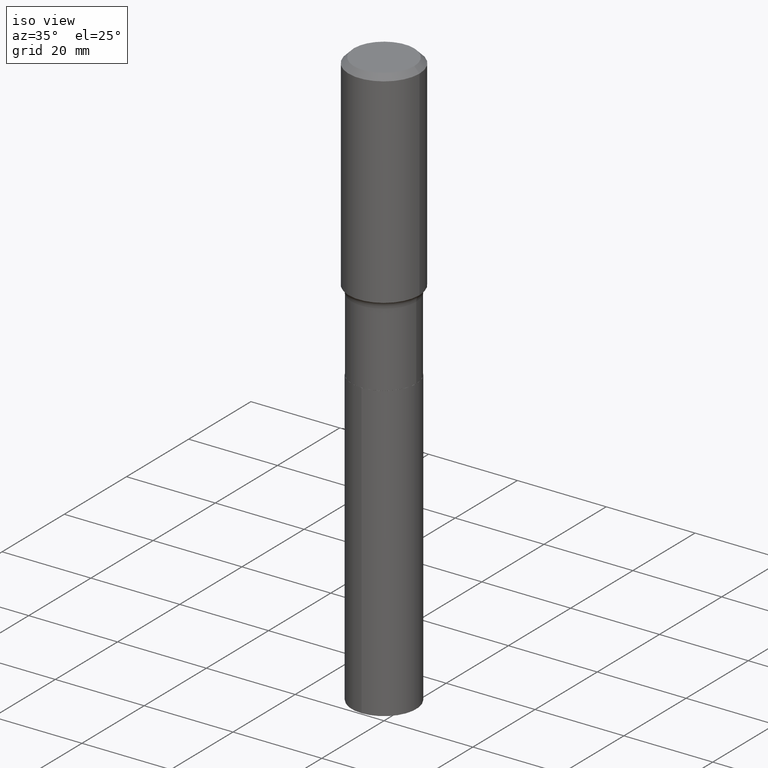
[diagram: clean part render]
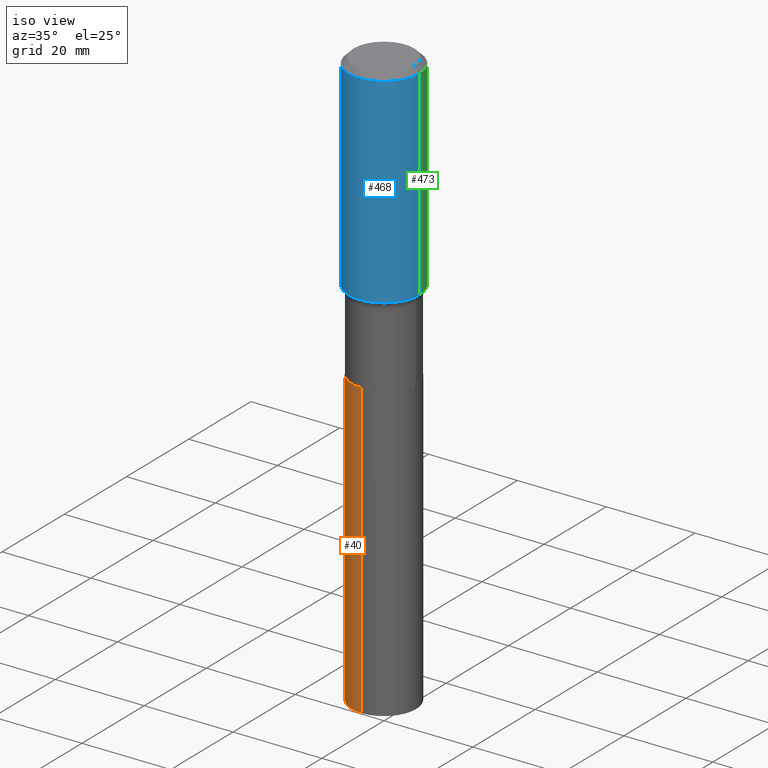
[diagram: same view with three faces highlighted in distinct colors, each labeled with its STEP entity id]
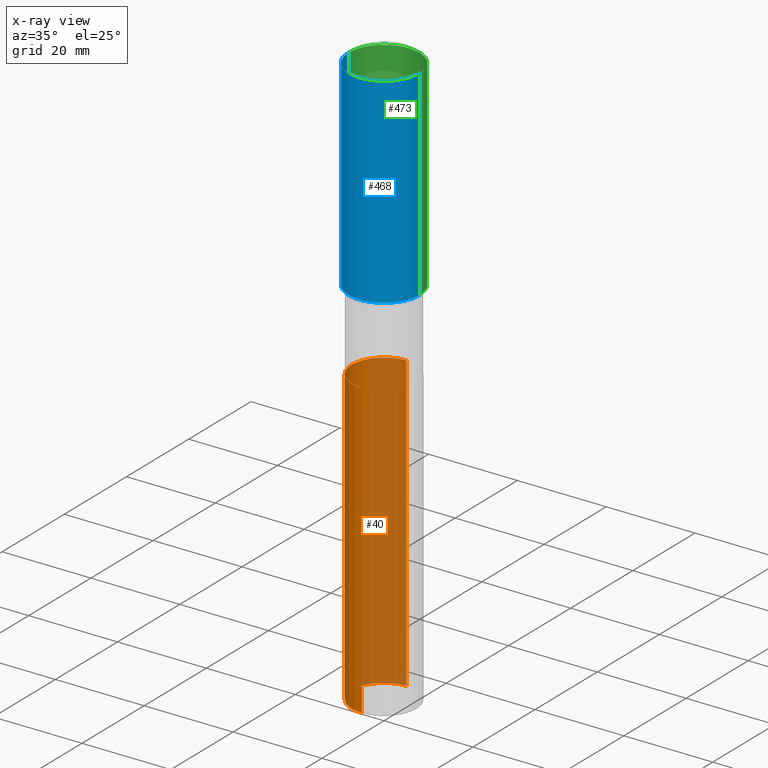
[diagram: x-ray of the same camera — body ghosted, the three highlighted faces saturated]
A machine part, iso view with three faces highlighted in distinct colors.
The next image is the same camera in x-ray (body ghosted, the three faces saturated) — at least one of them is partly hidden behind the body in this view.
Their STEP definitions:

[orange] entity #40 — the highlighted cylindrical surface (partial cylindrical patch) has radius 7.2504 mm, axis along (-0, 0, 1).
#2 = LINE ( 'NONE', #328, #372 ) ;
#24 = DIRECTION ( 'NONE',  ( -6.982962677686265922E-15, -1.000000000000000000, 3.828128209723963046E-15 ) ) ;
#25 = EDGE_CURVE ( 'NONE', #57, #211, #2, .T. ) ;
#29 = CIRCLE ( 'NONE', #399, 0.2854499999999999815 ) ;
#38 = CARTESIAN_POINT ( 'NONE',  ( 6.210023486426536087E-29, -8.866267711858284157E-15, -2.539400000000000102 ) ) ;
#40 = ADVANCED_FACE ( 'NONE', ( #183 ), #444, .T. ) ;
#57 = VERTEX_POINT ( 'NONE', #152 ) ;
#63 = EDGE_CURVE ( 'NONE', #393, #211, #29, .T. ) ;
#78 = DIRECTION ( 'NONE',  ( -2.445329345240365459E-29, 3.491681054853681860E-15, 1.000000000000000000 ) ) ;
#105 = ORIENTED_EDGE ( 'NONE', *, *, #63, .F. ) ;
#139 = AXIS2_PLACEMENT_3D ( 'NONE', #371, #292, #332 ) ;
#152 = CARTESIAN_POINT ( 'NONE',  ( -1.993286696345419132E-15, -0.2854500000000180782, -5.146197960714494535 ) ) ;
#173 = ORIENTED_EDGE ( 'NONE', *, *, #381, .T. ) ;
#183 = FACE_OUTER_BOUND ( 'NONE', #362, .T. ) ;
#211 = VERTEX_POINT ( 'NONE', #427 ) ;
#291 = DIRECTION ( 'NONE',  ( -2.445329345240365459E-29, 3.491681054853681860E-15, 1.000000000000000000 ) ) ;
#292 = DIRECTION ( 'NONE',  ( -2.445329345240365459E-29, 3.491681054853681860E-15, 1.000000000000000000 ) ) ;
#297 = CARTESIAN_POINT ( 'NONE',  ( 2.028244239227267775E-15, 0.2854499999999910997, -2.539400000000001434 ) ) ;
#328 = CARTESIAN_POINT ( 'NONE',  ( -1.993286696345482241E-15, -0.2854500000000088633, -2.539399999999999213 ) ) ;
#332 = DIRECTION ( 'NONE',  ( -6.982962677686265922E-15, -1.000000000000000000, 3.828128209723963046E-15 ) ) ;
#337 = CARTESIAN_POINT ( 'NONE',  ( 2.028244239227332461E-15, 0.2854499999999911553, -2.539400000000001434 ) ) ;
#362 = EDGE_LOOP ( 'NONE', ( #437, #173, #441, #105 ) ) ;
#368 = VERTEX_POINT ( 'NONE', #476 ) ;
#371 = CARTESIAN_POINT ( 'NONE',  ( 6.210023486426536087E-29, -8.866267711858284157E-15, -2.539400000000000102 ) ) ;
#372 = VECTOR ( 'NONE', #78, 39.37007874015748143 ) ;
#379 = DIRECTION ( 'NONE',  ( -2.445329345240365459E-29, 3.491681054853681860E-15, 1.000000000000000000 ) ) ;
#381 = EDGE_CURVE ( 'NONE', #368, #57, #417, .T. ) ;
#393 = VERTEX_POINT ( 'NONE', #337 ) ;
#398 = DIRECTION ( 'NONE',  ( -2.445329345240365459E-29, 3.491681054853681860E-15, 1.000000000000000000 ) ) ;
#399 = AXIS2_PLACEMENT_3D ( 'NONE', #38, #291, #442 ) ;
#405 = EDGE_CURVE ( 'NONE', #368, #393, #445, .T. ) ;
#408 = AXIS2_PLACEMENT_3D ( 'NONE', #439, #398, #24 ) ;
#417 = CIRCLE ( 'NONE', #408, 0.2854499999999999815 ) ;
#427 = CARTESIAN_POINT ( 'NONE',  ( -1.993286696345482241E-15, -0.2854500000000088633, -2.539399999999999213 ) ) ;
#437 = ORIENTED_EDGE ( 'NONE', *, *, #405, .F. ) ;
#439 = CARTESIAN_POINT ( 'NONE',  ( 1.258450303687443268E-28, -1.796837476511629986E-14, -5.146197960714495423 ) ) ;
#441 = ORIENTED_EDGE ( 'NONE', *, *, #25, .T. ) ;
#442 = DIRECTION ( 'NONE',  ( -6.982962677686265922E-15, -1.000000000000000000, 3.828128209723963046E-15 ) ) ;
#444 = CYLINDRICAL_SURFACE ( 'NONE', #139, 0.2854499999999999815 ) ;
#445 = LINE ( 'NONE', #297, #474 ) ;
#474 = VECTOR ( 'NONE', #379, 39.37007874015748143 ) ;
#476 = CARTESIAN_POINT ( 'NONE',  ( 2.028244239227332461E-15, 0.2854499999999821069, -5.146197960714496311 ) ) ;

[blue] entity #468 — the highlighted cylindrical surface (partial cylindrical patch) has radius 7.9997 mm, axis along (-0, 0, 1).
#7 = DIRECTION ( 'NONE',  ( -2.445468806185136597E-29, 3.491481338843145583E-15, 1.000000000000000000 ) ) ;
#17 = DIRECTION ( 'NONE',  ( -2.445468806185136877E-29, 3.491481338843145188E-15, 1.000000000000000000 ) ) ;
#18 = DIRECTION ( 'NONE',  ( -2.445468806185136597E-29, 3.491481338843145583E-15, 1.000000000000000000 ) ) ;
#37 = CIRCLE ( 'NONE', #350, 0.3149500000000001743 ) ;
#43 = FACE_OUTER_BOUND ( 'NONE', #319, .T. ) ;
#49 = VERTEX_POINT ( 'NONE', #70 ) ;
#51 = LINE ( 'NONE', #237, #335 ) ;
#67 = VECTOR ( 'NONE', #89, 39.37007874015748143 ) ;
#69 = CARTESIAN_POINT ( 'NONE',  ( -0.3149500000000000077, -1.025030018348669785E-15, -0.04724250000000026345 ) ) ;
#70 = CARTESIAN_POINT ( 'NONE',  ( 0.3149500000000001743, -8.560106517437202343E-15, -1.821811948795202252 ) ) ;
#89 = DIRECTION ( 'NONE',  ( -2.445468806185136877E-29, 3.491481338843145188E-15, 1.000000000000000000 ) ) ;
#91 = CARTESIAN_POINT ( 'NONE',  ( -0.3149500000000001743, -4.122968075823476488E-15, -1.821811948795202252 ) ) ;
#98 = ORIENTED_EDGE ( 'NONE', *, *, #106, .F. ) ;
#106 = EDGE_CURVE ( 'NONE', #378, #477, #168, .T. ) ;
#138 = ORIENTED_EDGE ( 'NONE', *, *, #142, .F. ) ;
#142 = EDGE_CURVE ( 'NONE', #208, #378, #51, .T. ) ;
#156 = DIRECTION ( 'NONE',  ( -2.445468806185136597E-29, 3.491481338843145583E-15, 1.000000000000000000 ) ) ;
#168 = CIRCLE ( 'NONE', #293, 0.3149500000000000077 ) ;
#191 = CYLINDRICAL_SURFACE ( 'NONE', #288, 0.3149500000000000632 ) ;
#208 = VERTEX_POINT ( 'NONE', #91 ) ;
#235 = EDGE_CURVE ( 'NONE', #49, #477, #308, .T. ) ;
#237 = CARTESIAN_POINT ( 'NONE',  ( -0.3149500000000000632, 2.237854346276435985E-15, -1.549218606675782956E-29 ) ) ;
#239 = CARTESIAN_POINT ( 'NONE',  ( 4.455184291514020558E-29, -6.360822422099914050E-15, -1.821811948795202252 ) ) ;
#246 = DIRECTION ( 'NONE',  ( 1.000000000000000000, -6.982962677686265922E-15, 0.000000000000000000 ) ) ;
#275 = EDGE_CURVE ( 'NONE', #208, #49, #37, .T. ) ;
#288 = AXIS2_PLACEMENT_3D ( 'NONE', #341, #7, #306 ) ;
#293 = AXIS2_PLACEMENT_3D ( 'NONE', #391, #156, #428 ) ;
#306 = DIRECTION ( 'NONE',  ( 1.000000000000000000, -6.982962677686266711E-15, 4.876176775795936353E-29 ) ) ;
#308 = LINE ( 'NONE', #424, #67 ) ;
#309 = ORIENTED_EDGE ( 'NONE', *, *, #275, .T. ) ;
#319 = EDGE_LOOP ( 'NONE', ( #138, #309, #491, #98 ) ) ;
#335 = VECTOR ( 'NONE', #17, 39.37007874015748143 ) ;
#341 = CARTESIAN_POINT ( 'NONE',  ( 0.000000000000000000, 0.000000000000000000, 0.000000000000000000 ) ) ;
#350 = AXIS2_PLACEMENT_3D ( 'NONE', #239, #18, #246 ) ;
#361 = CARTESIAN_POINT ( 'NONE',  ( 0.3149500000000000077, -2.364230402487588149E-15, -0.04724250000000026345 ) ) ;
#378 = VERTEX_POINT ( 'NONE', #69 ) ;
#391 = CARTESIAN_POINT ( 'NONE',  ( 1.155300600762019572E-30, -1.649463071502982046E-16, -0.04724250000000026345 ) ) ;
#424 = CARTESIAN_POINT ( 'NONE',  ( 0.3149500000000000632, -2.199284095337290265E-15, 1.535751875536930410E-29 ) ) ;
#428 = DIRECTION ( 'NONE',  ( 1.000000000000000000, -6.982962677686266711E-15, 0.000000000000000000 ) ) ;
#468 = ADVANCED_FACE ( 'NONE', ( #43 ), #191, .T. ) ;
#477 = VERTEX_POINT ( 'NONE', #361 ) ;
#491 = ORIENTED_EDGE ( 'NONE', *, *, #235, .T. ) ;

[green] entity #473 — the highlighted cylindrical surface (partial cylindrical patch) has radius 7.9997 mm, axis along (-0, 0, 1).
#10 = DIRECTION ( 'NONE',  ( -2.445468806185136597E-29, 3.491481338843145583E-15, 1.000000000000000000 ) ) ;
#17 = DIRECTION ( 'NONE',  ( -2.445468806185136877E-29, 3.491481338843145188E-15, 1.000000000000000000 ) ) ;
#49 = VERTEX_POINT ( 'NONE', #70 ) ;
#51 = LINE ( 'NONE', #237, #335 ) ;
#54 = AXIS2_PLACEMENT_3D ( 'NONE', #340, #310, #118 ) ;
#67 = VECTOR ( 'NONE', #89, 39.37007874015748143 ) ;
#69 = CARTESIAN_POINT ( 'NONE',  ( -0.3149500000000000077, -1.025030018348669785E-15, -0.04724250000000026345 ) ) ;
#70 = CARTESIAN_POINT ( 'NONE',  ( 0.3149500000000001743, -8.560106517437202343E-15, -1.821811948795202252 ) ) ;
#89 = DIRECTION ( 'NONE',  ( -2.445468806185136877E-29, 3.491481338843145188E-15, 1.000000000000000000 ) ) ;
#91 = CARTESIAN_POINT ( 'NONE',  ( -0.3149500000000001743, -4.122968075823476488E-15, -1.821811948795202252 ) ) ;
#96 = ORIENTED_EDGE ( 'NONE', *, *, #142, .T. ) ;
#109 = CIRCLE ( 'NONE', #278, 0.3149500000000000077 ) ;
#118 = DIRECTION ( 'NONE',  ( 1.000000000000000000, -6.982962677686265922E-15, 0.000000000000000000 ) ) ;
#123 = CARTESIAN_POINT ( 'NONE',  ( 1.155300600762019572E-30, -1.649463071502982046E-16, -0.04724250000000026345 ) ) ;
#142 = EDGE_CURVE ( 'NONE', #208, #378, #51, .T. ) ;
#146 = DIRECTION ( 'NONE',  ( -2.445468806185136597E-29, 3.491481338843145583E-15, 1.000000000000000000 ) ) ;
#147 = AXIS2_PLACEMENT_3D ( 'NONE', #489, #146, #294 ) ;
#149 = EDGE_CURVE ( 'NONE', #49, #208, #164, .T. ) ;
#164 = CIRCLE ( 'NONE', #54, 0.3149500000000001743 ) ;
#182 = FACE_OUTER_BOUND ( 'NONE', #436, .T. ) ;
#197 = EDGE_CURVE ( 'NONE', #477, #378, #109, .T. ) ;
#208 = VERTEX_POINT ( 'NONE', #91 ) ;
#216 = ORIENTED_EDGE ( 'NONE', *, *, #197, .F. ) ;
#235 = EDGE_CURVE ( 'NONE', #49, #477, #308, .T. ) ;
#237 = CARTESIAN_POINT ( 'NONE',  ( -0.3149500000000000632, 2.237854346276435985E-15, -1.549218606675782956E-29 ) ) ;
#278 = AXIS2_PLACEMENT_3D ( 'NONE', #123, #10, #385 ) ;
#290 = ORIENTED_EDGE ( 'NONE', *, *, #235, .F. ) ;
#294 = DIRECTION ( 'NONE',  ( 1.000000000000000000, -6.982962677686266711E-15, 4.876176775795936353E-29 ) ) ;
#308 = LINE ( 'NONE', #424, #67 ) ;
#310 = DIRECTION ( 'NONE',  ( -2.445468806185136597E-29, 3.491481338843145583E-15, 1.000000000000000000 ) ) ;
#331 = CYLINDRICAL_SURFACE ( 'NONE', #147, 0.3149500000000000632 ) ;
#335 = VECTOR ( 'NONE', #17, 39.37007874015748143 ) ;
#340 = CARTESIAN_POINT ( 'NONE',  ( 4.455184291514020558E-29, -6.360822422099914050E-15, -1.821811948795202252 ) ) ;
#361 = CARTESIAN_POINT ( 'NONE',  ( 0.3149500000000000077, -2.364230402487588149E-15, -0.04724250000000026345 ) ) ;
#378 = VERTEX_POINT ( 'NONE', #69 ) ;
#385 = DIRECTION ( 'NONE',  ( 1.000000000000000000, -6.982962677686266711E-15, 0.000000000000000000 ) ) ;
#424 = CARTESIAN_POINT ( 'NONE',  ( 0.3149500000000000632, -2.199284095337290265E-15, 1.535751875536930410E-29 ) ) ;
#436 = EDGE_LOOP ( 'NONE', ( #485, #96, #216, #290 ) ) ;
#473 = ADVANCED_FACE ( 'NONE', ( #182 ), #331, .T. ) ;
#477 = VERTEX_POINT ( 'NONE', #361 ) ;
#485 = ORIENTED_EDGE ( 'NONE', *, *, #149, .T. ) ;
#489 = CARTESIAN_POINT ( 'NONE',  ( 0.000000000000000000, 0.000000000000000000, 0.000000000000000000 ) ) ;